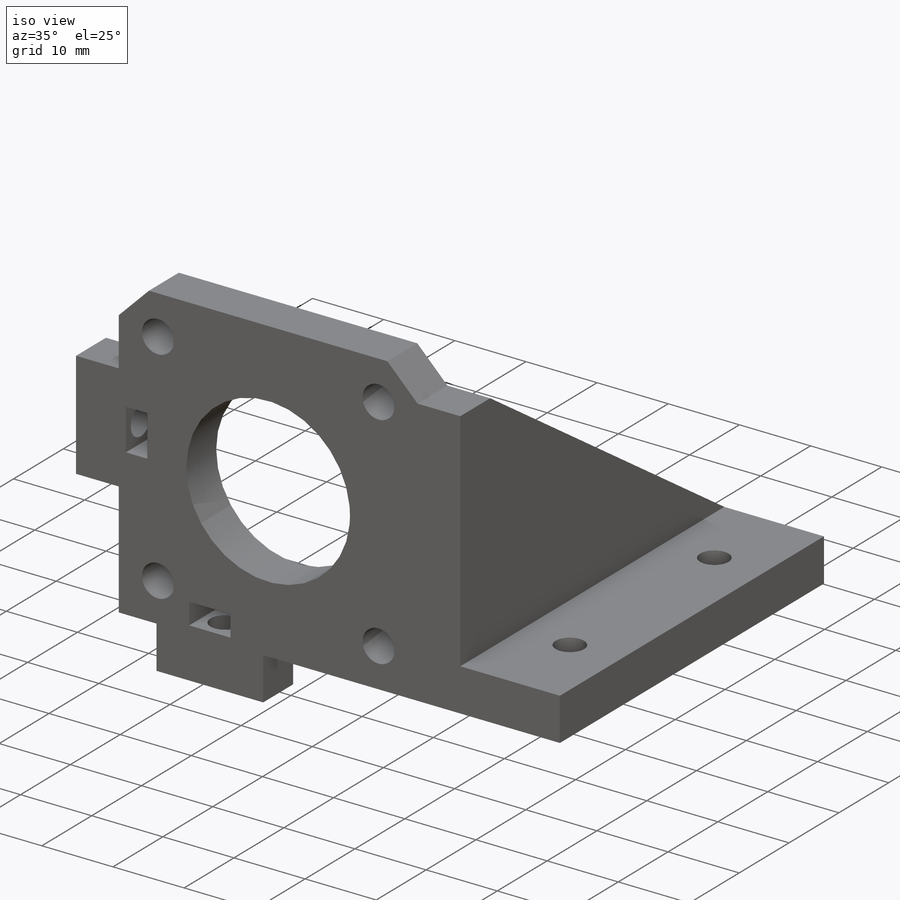
[diagram: iso view]
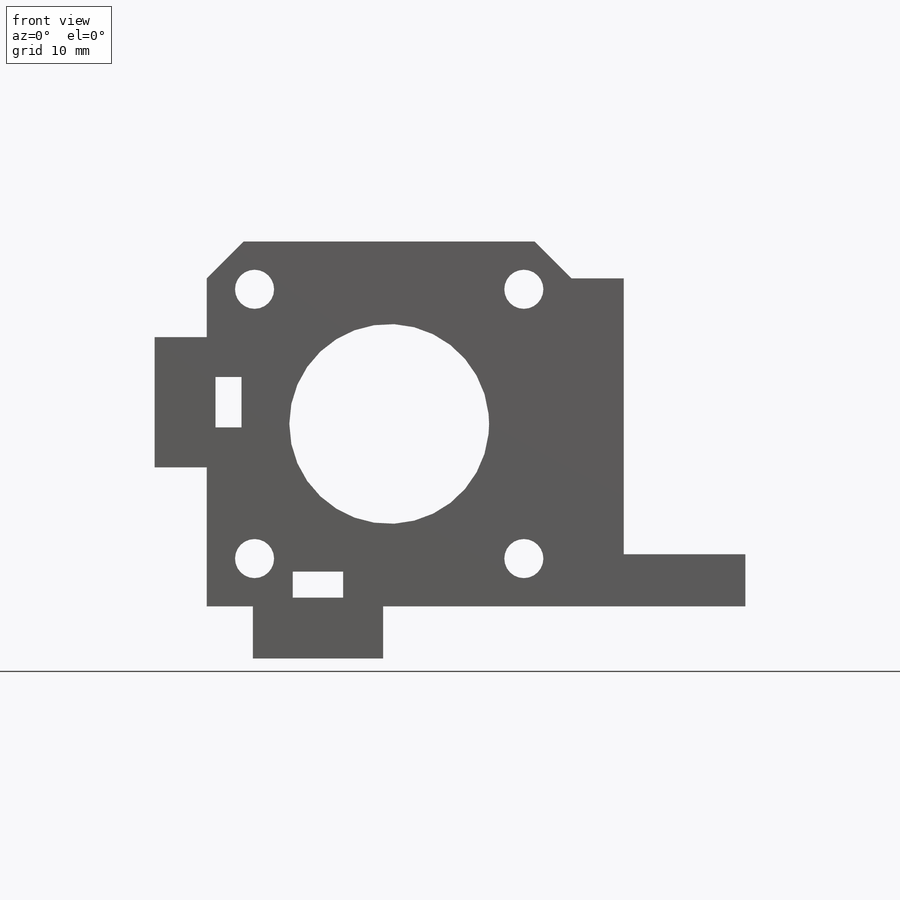
[diagram: front view]
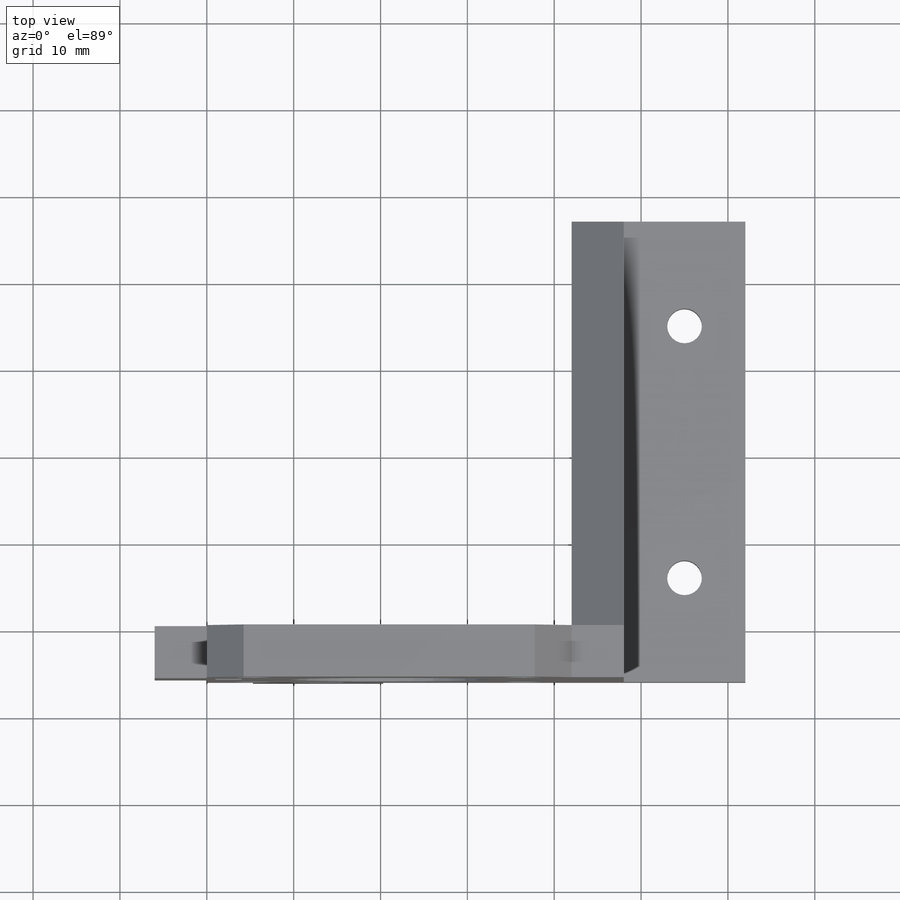
[diagram: top view]
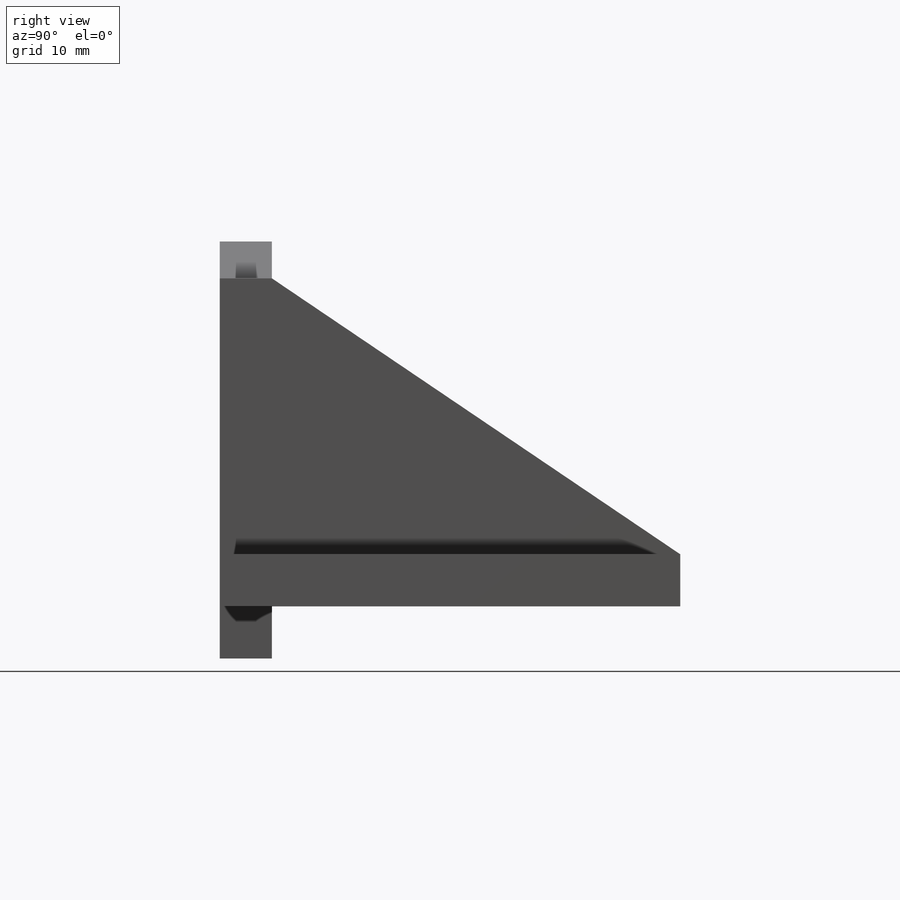
[diagram: right view]
SOLIDWORKS PART (.sldprt)
format: sldprt  version: not decoded by parser v0  size: 605,184 bytes
history: native  units: mm
features: sketch x5, plane x3, extrude x3, cut_extrude x2, material x1 (+11 scaffold rows collapsed)
feature tree (25):
  scaffold x11  (default folders/planes/origin — collapsed)
  material  "Matériau <non spécifié>"
  plane  "Plan de face"
  plane  "Plan de dessus"
  plane  "Plan de droite"
  sketch  "Esquisse1"  dims[c1.D4=23.0mm c1.D5=23.0mm c1.D10=4.5mm c1.D16=3.0mm c1.D17=3.0mm c1.D18=3.0mm c1.D1=16.0mm c1.D2=8.3mm c1.D3=40.0mm c2.D4=37.0mm c2.D5=30.0mm c2.D6=5.3mm c2.D7=42.0mm c2.D8=3.3mm c2.D9=~4.14934mm c3.D9=135.0deg c3.D10=48.3mm c3.D3=42.0mm c3.D4=40.7mm c4.D4=135.0deg c4.D2=5.0mm c5.D4=24.0mm c5.D6=34.0mm c5.D10=15.0mm c6.D6=10.0mm c6.D10=21.0mm c6.D8=6.0mm c6.D2=5.3mm c6.D5=21.0mm c7.D6=21.0mm c7.D10=~4.242641mm c8.D10=135.0deg c8.D11=6.0mm c8.D12=~4.242641mm c9.D12=135.0deg c9.D13=6.0mm c9.D7=42.0mm c9.D10=~33.514719mm c9.D11=5.0mm c10.D12=5.0mm c10.D13=6.0mm c10.D14=5.0mm c10.D15=5.0mm c10.D19=5.0mm c10.D20=5.0mm c10.D21=5.0mm c10.D22=5.0mm c10.D5=42.0mm c10.D7=21.0mm c11.D12=5.0mm c11.D13=5.0mm c11.D15=6.0mm c11.D23=15.0mm c11.D24=6.0mm c11.D25=15.0mm c11.D26=7.0mm c11.D27=5.8mm c11.D28=3.0mm c11.D29=2.5mm c11.D30=5.5mm c11.D31=7.0mm c12.D13=31.0mm c12.D11=15.5mm c12.D15=~23.516405deg]
  extrude  "Boss.-Extru.2"  Depth=6mm
  sketch  "Esquisse9"  dims[D1=53.0mm D2=6.0mm]
  extrude  "Boss.-Extru.4"  Depth=6mm
  sketch  "Esquisse11"  dims[D2=3.0mm D6=4.0mm D1=14.0mm D3=12.0mm D4=53.0mm D5=12.0mm]
  extrude  "Boss.-Extru.5"  Depth=6mm
  sketch  "Esquisse13"  dims[D1=4.0mm]
  cut_extrude  "Enlèv. mat.-Extru.1"  Depth=14mm
  sketch  "Esquisse14"  dims[D1=4.0mm]
  cut_extrude  "Enlèv. mat.-Extru.2"  Depth=14mm
decode coverage: 10 of 10 modeling features carry decoded parameters
note: ~ marks probable driven/reference dimensions
note: suppression state not decoded; provenance and decode notes live in map.json
